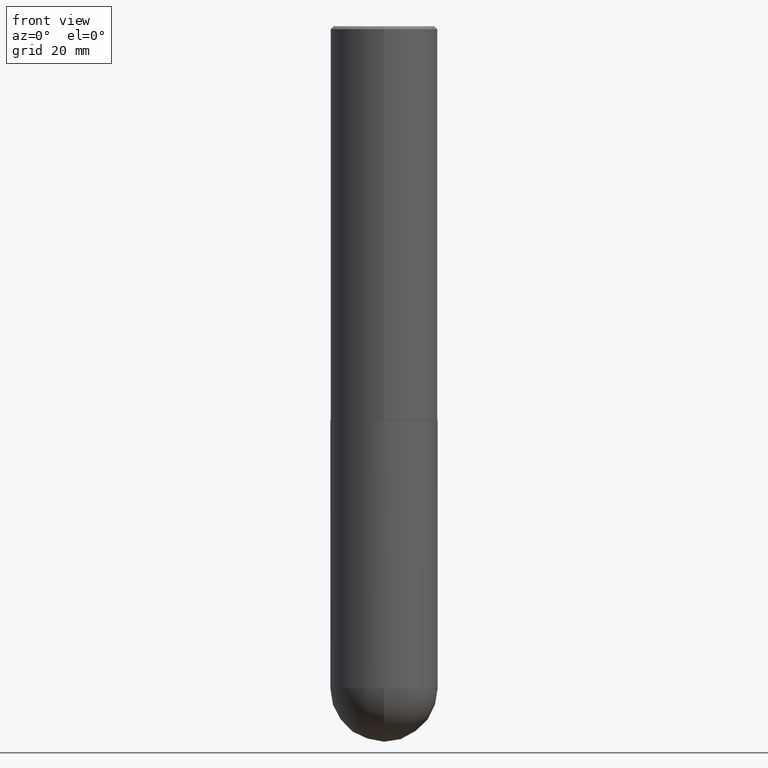
[diagram: clean part render]
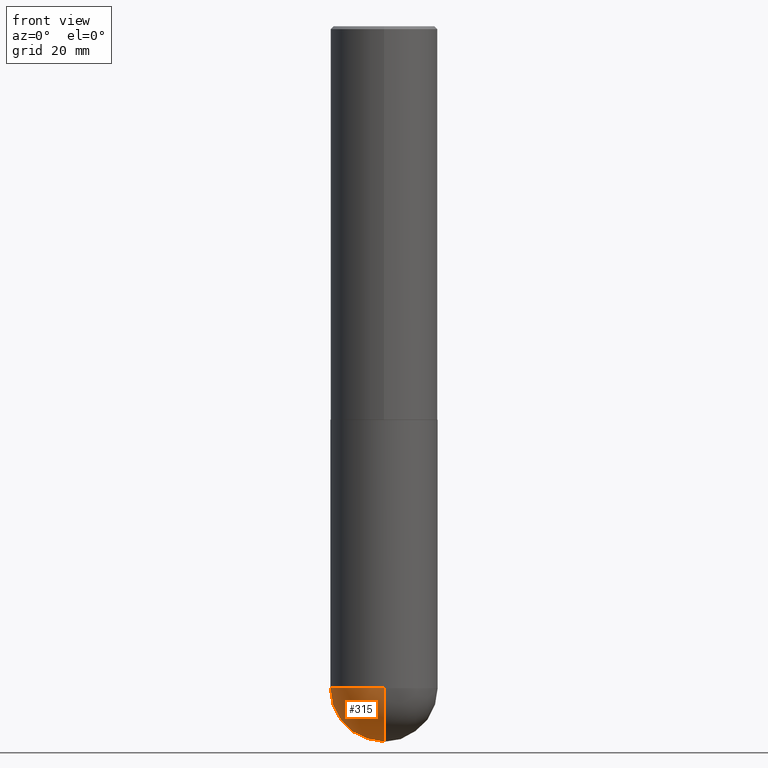
[diagram: same view with one face highlighted and labeled with its STEP entity id]
A machine part, front view. The second image highlights one B-rep face of the part: STEP entity #315.
In plain terms, the highlighted spherical surface has radius 9.525 mm.
Its self-contained STEP definition (entity closure, byte-faithful):
#14 = CARTESIAN_POINT ( 'NONE',  ( 1.191225862093391378E-28, -1.790862693487176734E-14, -5.000000000000000000 ) ) ;
#26 = CIRCLE ( 'NONE', #136, 0.3750000000000001110 ) ;
#33 = DIRECTION ( 'NONE',  ( 6.982962677686266711E-15, 1.000000000000000000, -2.913971193241878005E-15 ) ) ;
#45 = CARTESIAN_POINT ( 'NONE',  ( 1.097917345069237163E-28, -1.662228356028959886E-14, -4.625000000000000000 ) ) ;
#52 = CARTESIAN_POINT ( 'NONE',  ( 1.131029322860625676E-28, -1.614810119214955014E-14, -4.625000000000000888 ) ) ;
#60 = VERTEX_POINT ( 'NONE', #14 ) ;
#61 = CARTESIAN_POINT ( 'NONE',  ( -2.664535259100265651E-15, -0.3750000000000165978, -4.624999999999999112 ) ) ;
#62 = ORIENTED_EDGE ( 'NONE', *, *, #243, .F. ) ;
#73 = CIRCLE ( 'NONE', #118, 0.3750000000000003886 ) ;
#78 = CARTESIAN_POINT ( 'NONE',  ( -0.3750000000000001110, -1.021030217788372667E-14, -4.625000000000000888 ) ) ;
#95 = CARTESIAN_POINT ( 'NONE',  ( 1.131029322860625676E-28, -1.614810119214955014E-14, -4.625000000000000888 ) ) ;
#97 = DIRECTION ( 'NONE',  ( 1.000000000000000000, -6.982962677686265922E-15, 0.000000000000000000 ) ) ;
#98 = CARTESIAN_POINT ( 'NONE',  ( 1.097917345069237163E-28, -1.662228356028959886E-14, -4.625000000000000000 ) ) ;
#110 = AXIS2_PLACEMENT_3D ( 'NONE', #288, #348, #33 ) ;
#116 = DIRECTION ( 'NONE',  ( -2.445468806185136597E-29, 3.491481338843145583E-15, 1.000000000000000000 ) ) ;
#118 = AXIS2_PLACEMENT_3D ( 'NONE', #45, #267, #177 ) ;
#123 = VERTEX_POINT ( 'NONE', #239 ) ;
#126 = ORIENTED_EDGE ( 'NONE', *, *, #400, .F. ) ;
#136 = AXIS2_PLACEMENT_3D ( 'NONE', #52, #116, #240 ) ;
#172 = EDGE_CURVE ( 'NONE', #60, #406, #73, .T. ) ;
#177 = DIRECTION ( 'NONE',  ( -7.105427357600999492E-15, -1.000000000000000000, 0.000000000000000000 ) ) ;
#185 = VERTEX_POINT ( 'NONE', #78 ) ;
#202 = EDGE_LOOP ( 'NONE', ( #238, #295, #62, #126 ) ) ;
#220 = DIRECTION ( 'NONE',  ( -2.445468806185136597E-29, 3.491481338843145583E-15, 1.000000000000000000 ) ) ;
#228 = CIRCLE ( 'NONE', #402, 0.3750000000000001110 ) ;
#229 = FACE_OUTER_BOUND ( 'NONE', #202, .T. ) ;
#238 = ORIENTED_EDGE ( 'NONE', *, *, #262, .F. ) ;
#239 = CARTESIAN_POINT ( 'NONE',  ( 2.618611004132463218E-15, 0.3749999999999838463, -4.625000000000001776 ) ) ;
#240 = DIRECTION ( 'NONE',  ( 1.000000000000000000, -6.982962677686265922E-15, 0.000000000000000000 ) ) ;
#243 = EDGE_CURVE ( 'NONE', #185, #406, #26, .T. ) ;
#262 = EDGE_CURVE ( 'NONE', #60, #123, #305, .T. ) ;
#267 = DIRECTION ( 'NONE',  ( -1.000000000000000000, 7.105427357601001070E-15, -4.926315508542082329E-29 ) ) ;
#286 = DIRECTION ( 'NONE',  ( 6.982962677686265922E-15, 1.000000000000000000, 0.000000000000000000 ) ) ;
#288 = CARTESIAN_POINT ( 'NONE',  ( 1.097917345069237163E-28, -1.662228356028959886E-14, -4.625000000000000000 ) ) ;
#295 = ORIENTED_EDGE ( 'NONE', *, *, #172, .T. ) ;
#305 = CIRCLE ( 'NONE', #351, 0.3750000000000003886 ) ;
#315 = ADVANCED_FACE ( 'NONE', ( #229 ), #345, .T. ) ;
#345 = SPHERICAL_SURFACE ( 'NONE', #110, 0.3750000000000003886 ) ;
#348 = DIRECTION ( 'NONE',  ( -1.000000000000000000, 6.982962677686266711E-15, -4.883557194083113462E-29 ) ) ;
#351 = AXIS2_PLACEMENT_3D ( 'NONE', #98, #409, #286 ) ;
#400 = EDGE_CURVE ( 'NONE', #123, #185, #228, .T. ) ;
#402 = AXIS2_PLACEMENT_3D ( 'NONE', #95, #220, #97 ) ;
#406 = VERTEX_POINT ( 'NONE', #61 ) ;
#409 = DIRECTION ( 'NONE',  ( 1.000000000000000000, -6.982962677686265922E-15, 4.883557194083112340E-29 ) ) ;